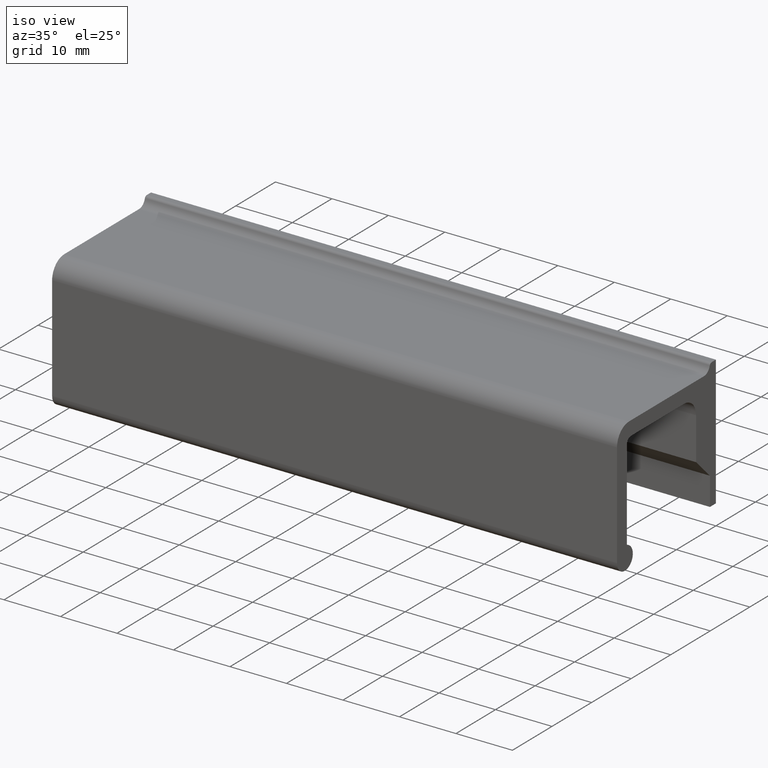
[diagram: clean part render]
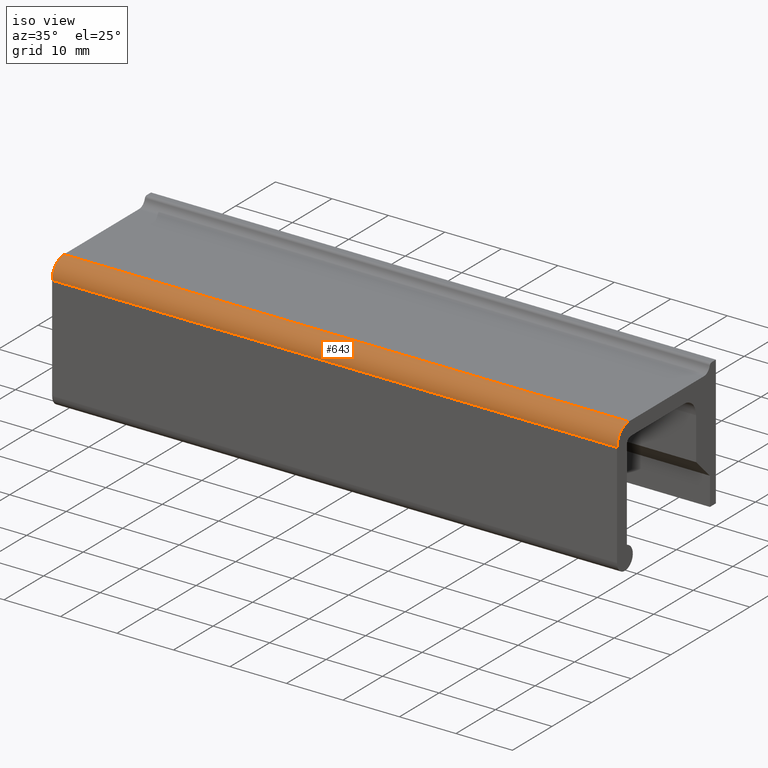
[diagram: same view with one face highlighted and labeled with its STEP entity id]
A machine part, iso view. The second image highlights one B-rep face of the part: STEP entity #643.
In plain terms, the highlighted face is a freeform B-spline surface patch.
Its self-contained STEP definition (entity closure, byte-faithful):
#171=CARTESIAN_POINT('',(0.0,-25.0,-4.500000000000200));
#172=VERTEX_POINT('',#171);
#178=CARTESIAN_POINT('',(0.0,-22.0,-1.500000000000000));
#179=VERTEX_POINT('',#178);
#180=CARTESIAN_POINT('',(0.0,-22.0,-1.500000000000000));
#181=CARTESIAN_POINT('',(0.0,-25.0,-1.500000000000201));
#182=CARTESIAN_POINT('',(0.0,-25.0,-4.500000000000200));
#190=(BOUNDED_CURVE()B_SPLINE_CURVE(2,(#180,#181,#182),.UNSPECIFIED.,.F.,.U.)CURVE()GEOMETRIC_REPRESENTATION_ITEM()QUASI_UNIFORM_CURVE()RATIONAL_B_SPLINE_CURVE((1.0,0.707106781186548,1.0))REPRESENTATION_ITEM(''));
#191=EDGE_CURVE('',#179,#172,#190,.T.);
#253=CARTESIAN_POINT('',(100.0,-22.0,-1.500000000000000));
#254=VERTEX_POINT('',#253);
#260=CARTESIAN_POINT('',(100.0,-25.0,-4.500000000000200));
#261=VERTEX_POINT('',#260);
#262=CARTESIAN_POINT('',(100.0,-22.0,-1.500000000000200));
#263=CARTESIAN_POINT('',(100.0,-25.0,-1.500000000000201));
#264=CARTESIAN_POINT('',(100.0,-25.0,-4.500000000000200));
#272=(BOUNDED_CURVE()B_SPLINE_CURVE(2,(#262,#263,#264),.UNSPECIFIED.,.F.,.U.)CURVE()GEOMETRIC_REPRESENTATION_ITEM()QUASI_UNIFORM_CURVE()RATIONAL_B_SPLINE_CURVE((1.0,0.707106781186548,1.0))REPRESENTATION_ITEM(''));
#273=EDGE_CURVE('',#254,#261,#272,.T.);
#611=CARTESIAN_POINT('',(100.0,-25.0,-4.500000000000200));
#612=CARTESIAN_POINT('',(0.0,-25.0,-4.500000000000200));
#613=QUASI_UNIFORM_CURVE('',1,(#611,#612),.UNSPECIFIED.,.F.,.U.);
#614=EDGE_CURVE('',#261,#172,#613,.T.);
#619=CARTESIAN_POINT('',(102.500000000000000,-21.973820393504880,-1.500114230807687));
#620=CARTESIAN_POINT('',(-2.562500000000000,-21.973820393504880,-1.500114230807687));
#621=CARTESIAN_POINT('',(102.500000000000030,-25.190804026035263,-1.472040039961563));
#622=CARTESIAN_POINT('',(-2.562500000000000,-25.190804026035263,-1.472040039961563));
#623=CARTESIAN_POINT('',(102.500000000000000,-24.994404395265612,-4.683145618604769));
#624=CARTESIAN_POINT('',(-2.562500000000000,-24.994404395265612,-4.683145618604769));
#632=(BOUNDED_SURFACE()B_SPLINE_SURFACE(1,2,((#619,#621,#623),(#620,#622,#624)),.UNSPECIFIED.,.F.,.F.,.U.)B_SPLINE_SURFACE_WITH_KNOTS((2,2),(3,3),(0.0,105.062500000000000),(0.0,5.217748499531202),.UNSPECIFIED.)GEOMETRIC_REPRESENTATION_ITEM()RATIONAL_B_SPLINE_SURFACE(((1.0,0.681998360062499,1.0),(1.0,0.681998360062499,1.0)))REPRESENTATION_ITEM('')SURFACE());
#633=ORIENTED_EDGE('',*,*,#191,.T.);
#634=ORIENTED_EDGE('',*,*,#614,.F.);
#635=ORIENTED_EDGE('',*,*,#273,.F.);
#636=CARTESIAN_POINT('',(100.0,-22.0,-1.500000000000000));
#637=CARTESIAN_POINT('',(0.0,-22.0,-1.500000000000000));
#638=QUASI_UNIFORM_CURVE('',1,(#636,#637),.UNSPECIFIED.,.F.,.U.);
#639=EDGE_CURVE('',#254,#179,#638,.T.);
#640=ORIENTED_EDGE('',*,*,#639,.T.);
#641=EDGE_LOOP('',(#633,#634,#635,#640));
#642=FACE_OUTER_BOUND('',#641,.T.);
#643=ADVANCED_FACE('',(#642),#632,.T.);